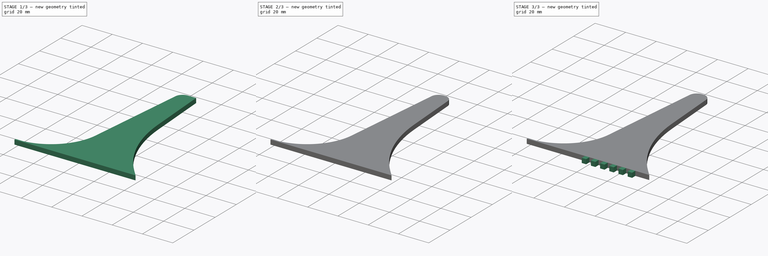
[diagram: build sequence overview — one tinted view per stage of 3, left to right]
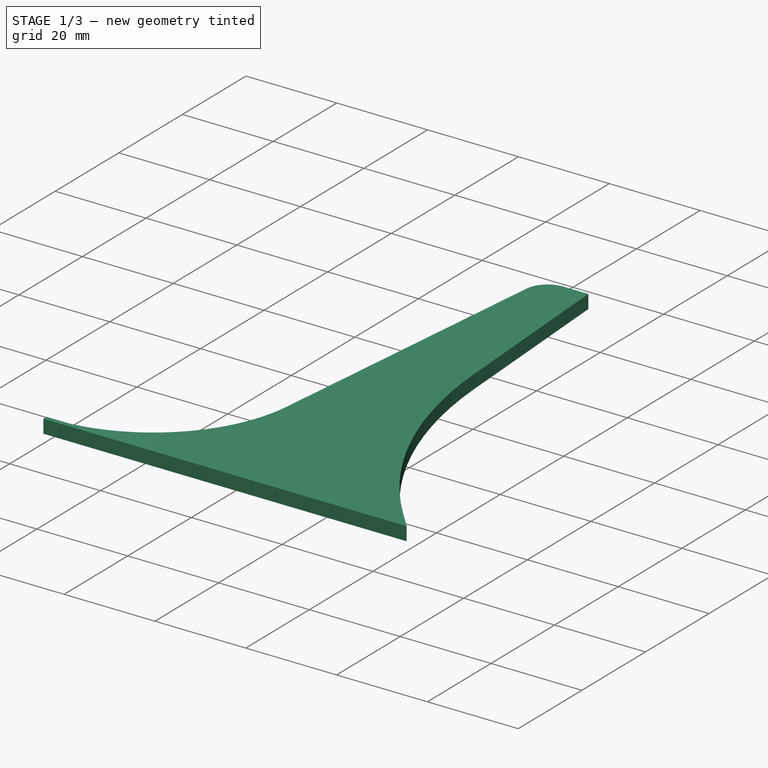
[diagram: stage 1 of 3 — iso view after this stage's code; geometry added in this stage tinted green]
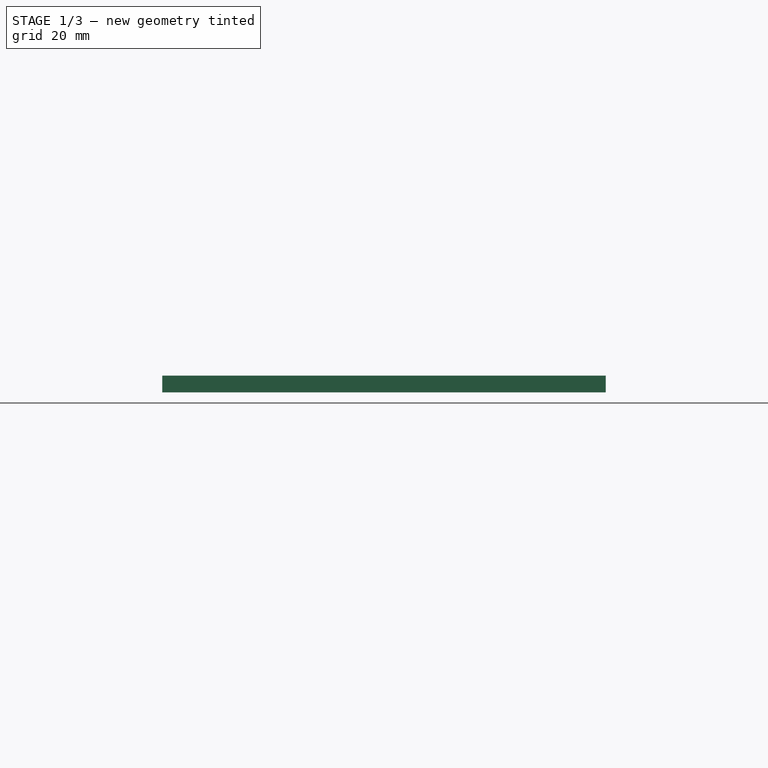
[diagram: stage 1 of 3 — front view after this stage's code; geometry added in this stage tinted green]
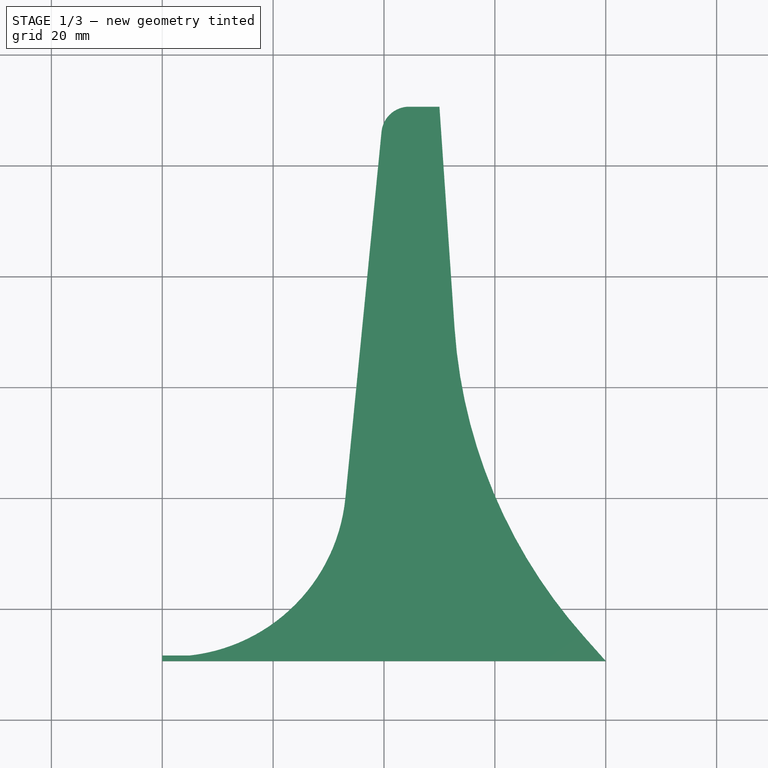
[diagram: stage 1 of 3 — top view after this stage's code; geometry added in this stage tinted green]
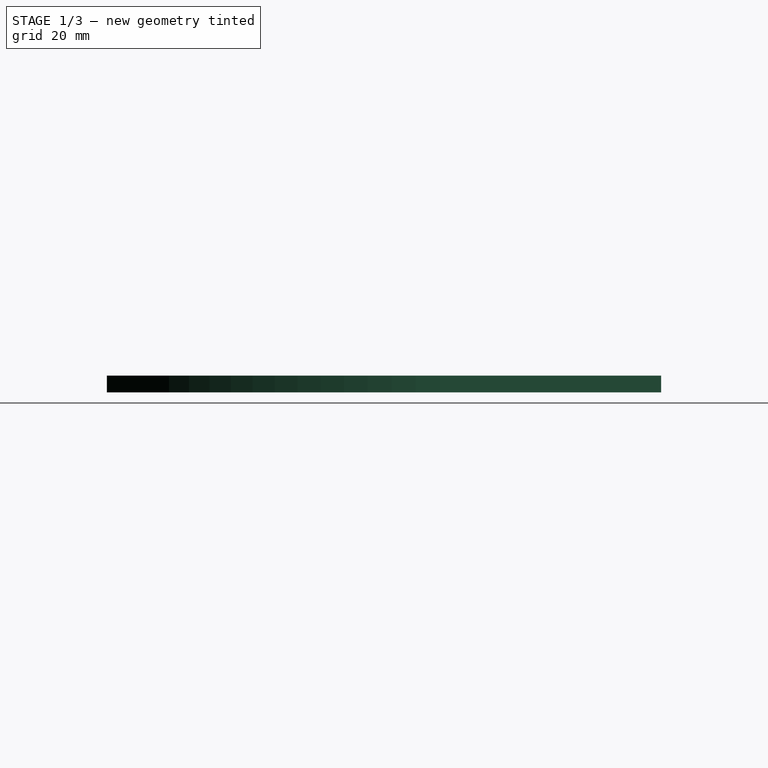
[diagram: stage 1 of 3 — right view after this stage's code; geometry added in this stage tinted green]
FCSTD DOCUMENT  (FreeCAD 0.15R4671 (Git))
Label: Kinect_Side
License: All rights reserved
LicenseURL: http://de.wikipedia.org/wiki/Alle_Rechte_vorbehalten
objects: Sketcher::SketchObject×2, PartDesign::Pad×2, PartDesign::Fillet×2, PartDesign::LinearPattern×1
note: 9 computed .brp shape members not serialized (recipe doc carries the construction recipe); baked Part::Feature solids carry a one-line shape summary decoded from their .brp

FEATURE [Sketcher::SketchObject] Sketch
  sketch-geometry (9):
    g0: LineSegment StartX=-80 StartY=-29.3928 StartZ=0 EndX=0 EndY=-29.3928 EndZ=0
    g1: LineSegment StartX=-30 StartY=70.6072 StartZ=0 EndX=-40 EndY=70.6072 EndZ=0
    g2: LineSegment StartX=-40 StartY=70.6072 StartZ=0 EndX=-46.9666 EndY=-1e-12 EndZ=0
    g3: LineSegment StartX=-75 StartY=-28.3928 StartZ=0 EndX=-80 EndY=-28.3928 EndZ=0
    g4: LineSegment StartX=-80 StartY=-28.3928 StartZ=0 EndX=-80 EndY=-29.3928 EndZ=0
    g5: ArcOfCircle CenterX=-78.5144 CenterY=3.11275 CenterZ=0 NormalX=0 NormalY=0 NormalZ=1 Radius=31.701 StartAngle=4.82348 EndAngle=6.18484
    g6: LineSegment StartX=-30 StartY=70.6072 StartZ=0 EndX=-27.2747 EndY=30.7001 EndZ=0
    g7: LineSegment StartX=-3.89944 StartY=-25.0042 StartZ=0 EndX=0 EndY=-29.3928 EndZ=0
    g8: ArcOfCircle CenterX=65.9586 CenterY=37.0671 CenterZ=0 NormalX=0 NormalY=0 NormalZ=1 Radius=93.4505 StartAngle=3.20978 EndAngle=3.86804
  constraints (27):
    c: Coincident(g3,g4)
    c: Coincident(g4,g0)
    c: Parallel(g0,g-1)
    c: Perpendicular(g4,g3)
    c: Parallel(g1,g0)
    c: Perpendicular(g0,g4)
    c: Tangent(g2,g5) = 1.5708
    c: Coincident(g5,g3)
    c: DistanceX(g2,g3) = -40
    c: DistanceY(g0,g2) = 100
    c: Distance(g4) = 1
    c: Coincident(g1,g2)
    c: Distance(g1) = 10
    c: Coincident(g6,g1)
    c: Tangent(g7,g8) = -1.5708
    c: Tangent(g6,g8) = -1.5708
    c: Distance(g0) = 80
    c: Angle(g5) = 1.36136
    c: Angle(g8) = 0.65826
    c: Angle(g2,g1) = 1.66915
    c: Angle(g1,g6) = 1.63898
    c: Distance(g3) = 5
    c: Distance(g6) = 40
    c: DistanceX(g7,g0) = 0
    c: DistanceY(g7,g0) = 0
    c: PointOnObject(g0,g-2)
    c: PointOnObject(g2,g-1)
FEATURE [PartDesign::Pad] Pad
  Length = 3
  Length2 = 100
  Sketch = -> Sketch
  Type = 0
FEATURE [PartDesign::Fillet] Fillet
  Base = -> Pad [Edge20]
  Radius = 5
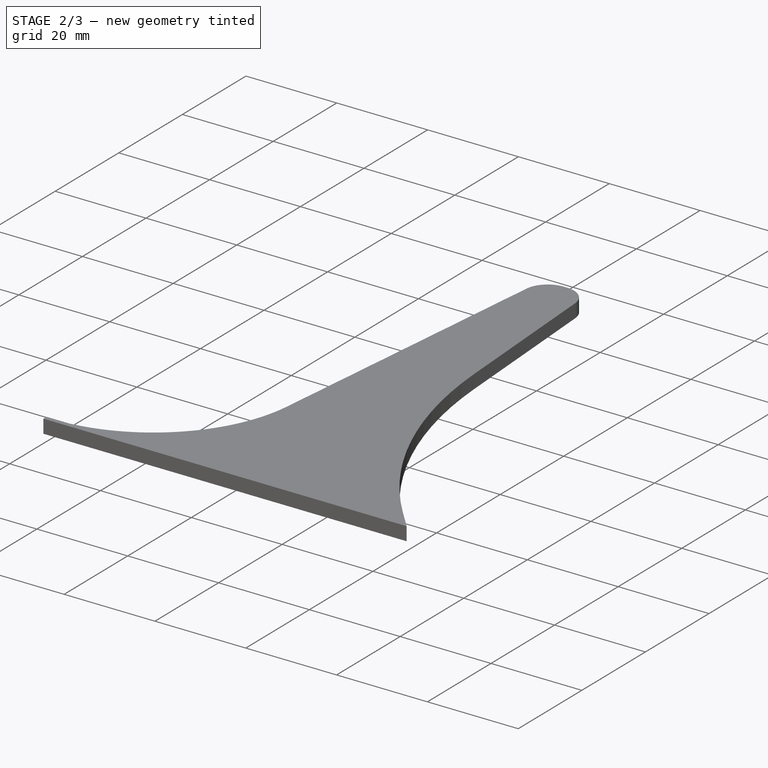
[diagram: stage 2 of 3 — iso view after this stage's code; geometry added in this stage tinted green]
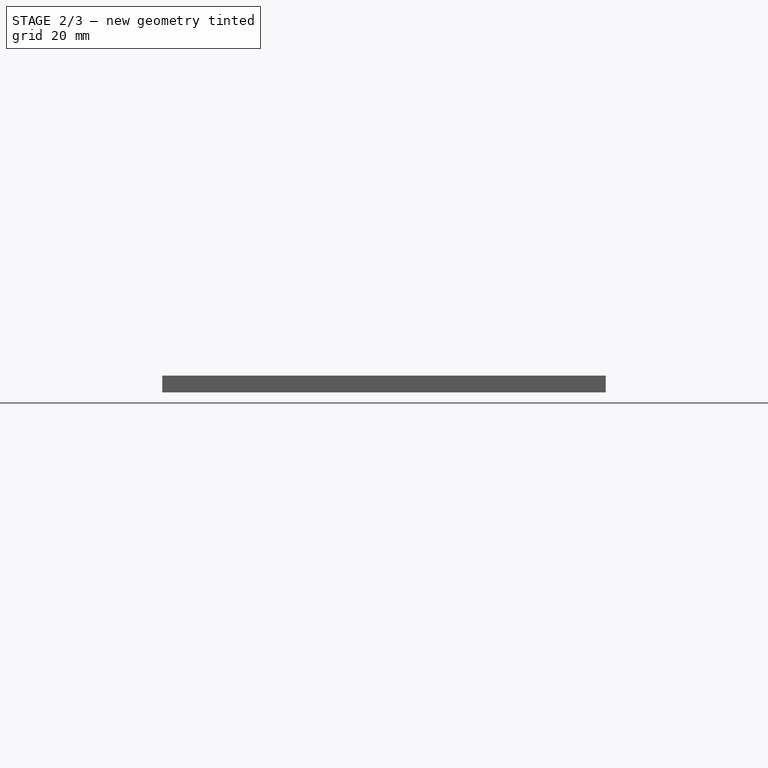
[diagram: stage 2 of 3 — front view after this stage's code; geometry added in this stage tinted green]
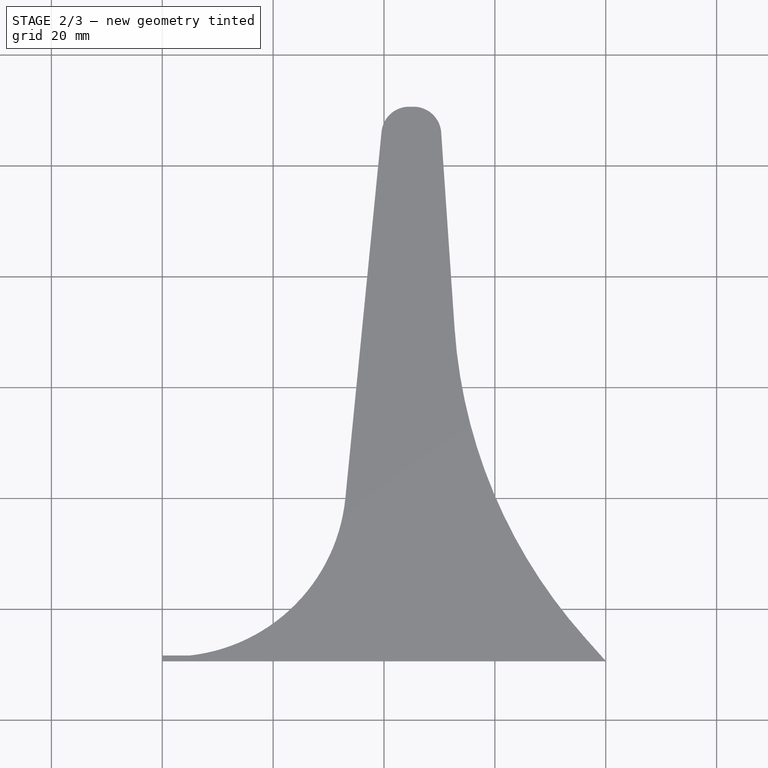
[diagram: stage 2 of 3 — top view after this stage's code; geometry added in this stage tinted green]
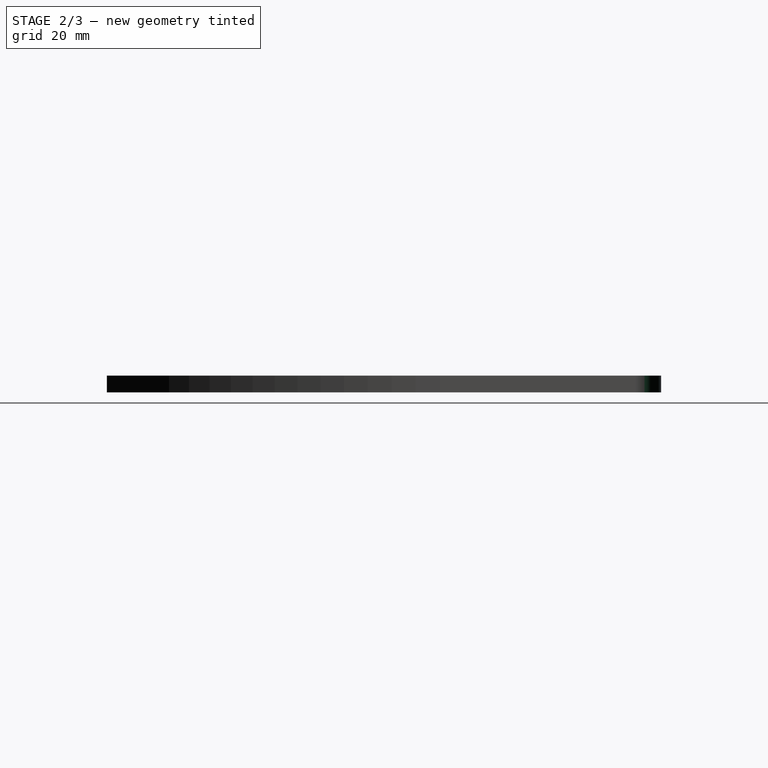
[diagram: stage 2 of 3 — right view after this stage's code; geometry added in this stage tinted green]
FEATURE [PartDesign::Fillet] Fillet001
  Base = -> Fillet [Edge3]
  Radius = 5
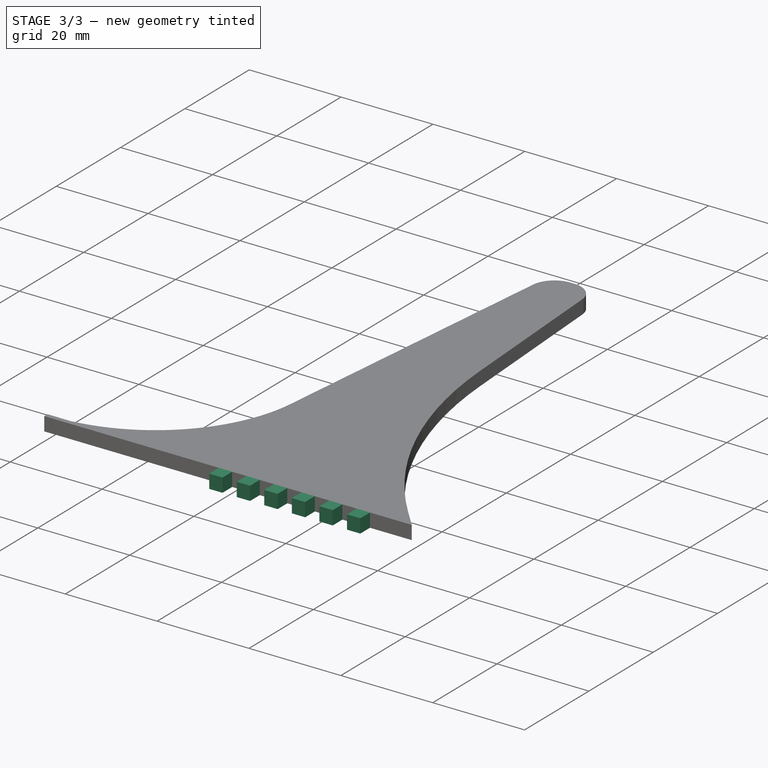
[diagram: stage 3 of 3 — iso view after this stage's code; geometry added in this stage tinted green]
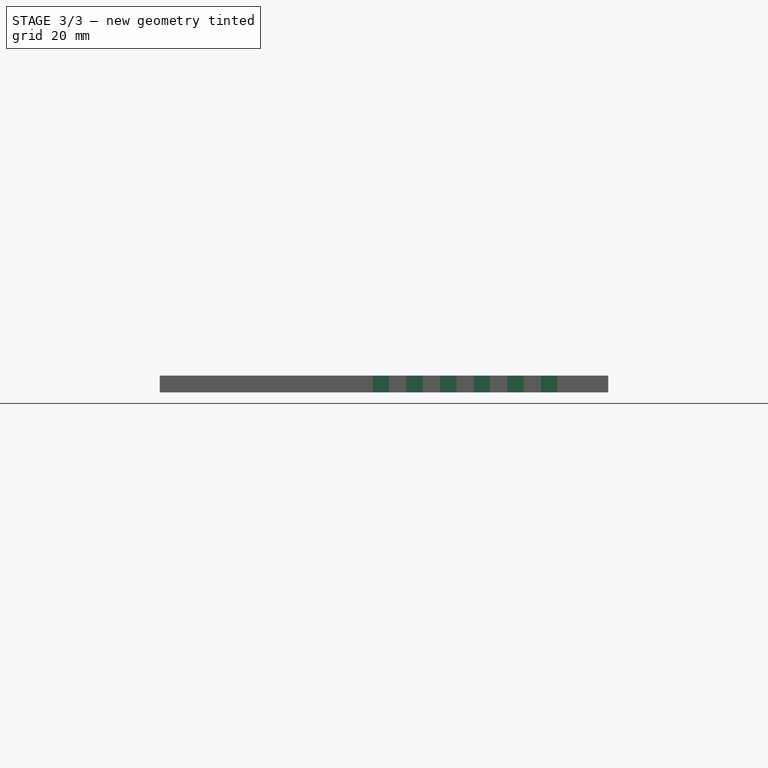
[diagram: stage 3 of 3 — front view after this stage's code; geometry added in this stage tinted green]
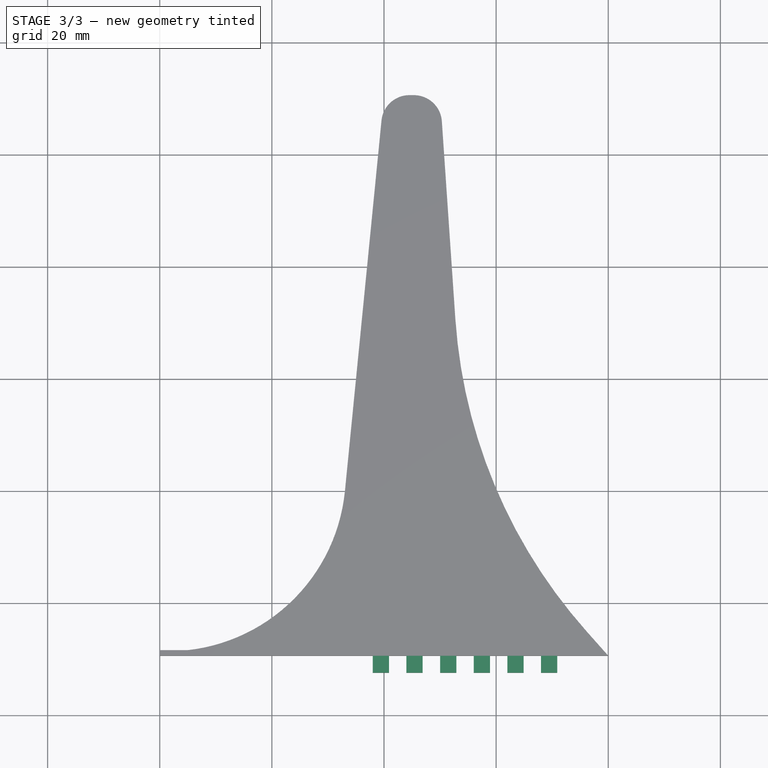
[diagram: stage 3 of 3 — top view after this stage's code; geometry added in this stage tinted green]
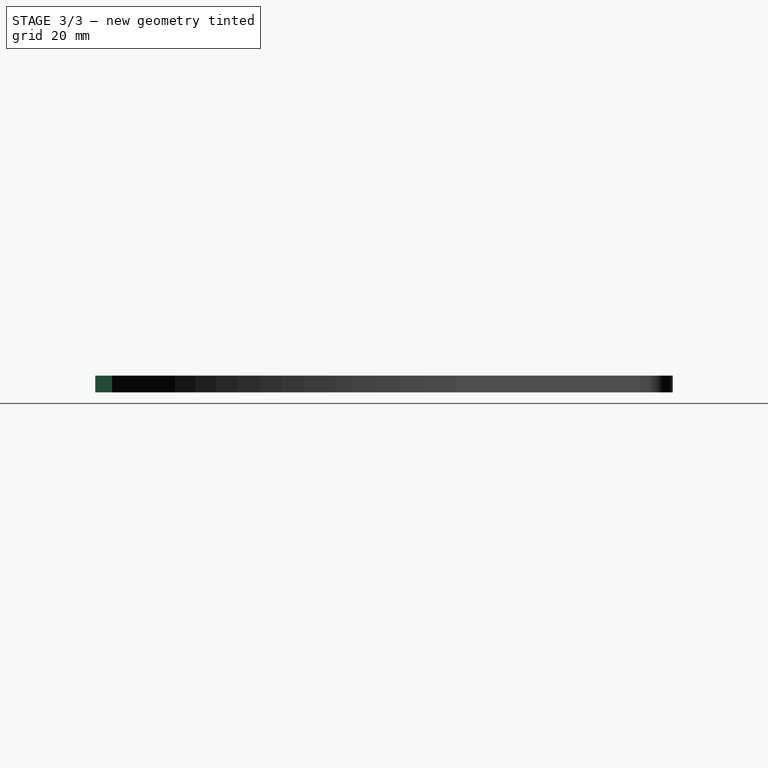
[diagram: stage 3 of 3 — right view after this stage's code; geometry added in this stage tinted green]
FEATURE [Sketcher::SketchObject] Sketch001
  ExternalGeometry = -> [Fillet001]
  Placement = pos=(0,-29.3928,0) rot=(1,0,0;1.5708rad)
  Support = -> Fillet001 [Face12]
  sketch-geometry (4):
    g0: LineSegment StartX=-42 StartY=0 StartZ=0 EndX=-39.1 EndY=0 EndZ=0
    g1: LineSegment StartX=-39.1 StartY=0 StartZ=0 EndX=-39.1 EndY=3 EndZ=0
    g2: LineSegment StartX=-39.1 StartY=3 StartZ=0 EndX=-42 EndY=3 EndZ=0
    g3: LineSegment StartX=-42 StartY=3 StartZ=0 EndX=-42 EndY=0 EndZ=0
  constraints (12):
    c: Coincident(g0,g1)
    c: Coincident(g1,g2)
    c: Coincident(g2,g3)
    c: Coincident(g3,g0)
    c: Horizontal(g0)
    c: Horizontal(g2)
    c: Vertical(g1)
    c: Vertical(g3)
    c: Distance(g0,g0) = 2.9
    c: Distance(g1,g0) = 3
    c: DistanceY(g1,g-3) = 0
    c: DistanceX(g2,g-3) = -38
FEATURE [PartDesign::Pad] Pad001
  Length = 3
  Length2 = 100
  Sketch = -> Sketch001
  Type = 0
FEATURE [PartDesign::LinearPattern] LinearPattern
  Direction = -> Sketch001 [H_Axis]
  Length = 30
  Occurrences = 6
  Originals = -> [Pad001]
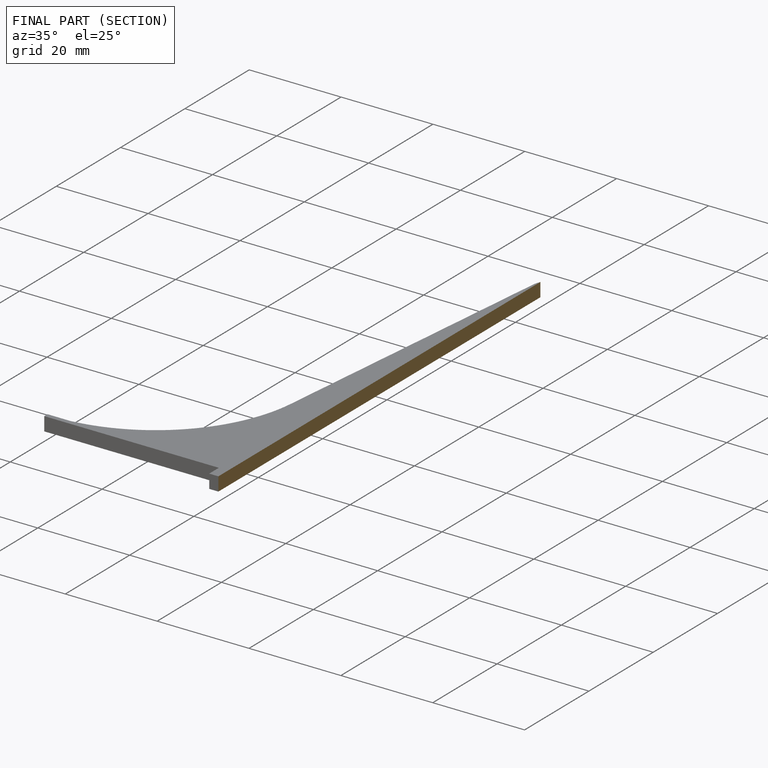
[diagram: finished part — half-section view (interior)]
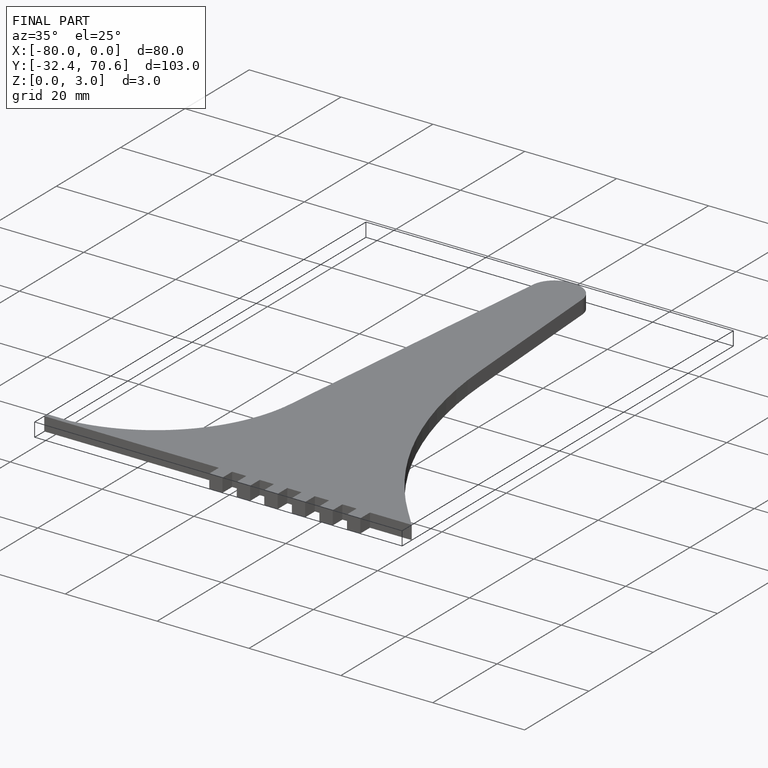
[diagram: finished part — iso view with bounding-box wireframe]
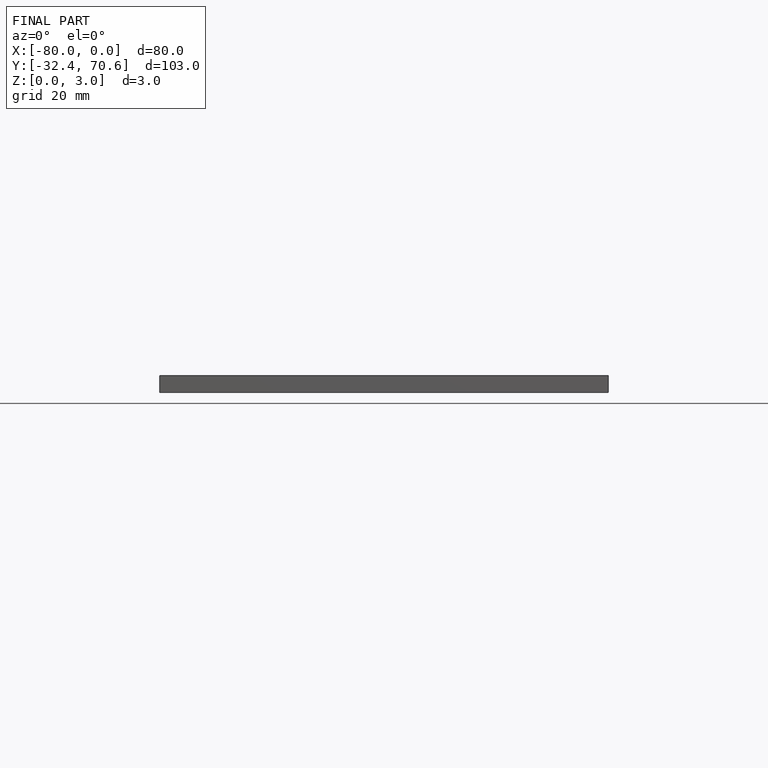
[diagram: finished part — front view with bounding-box wireframe]
